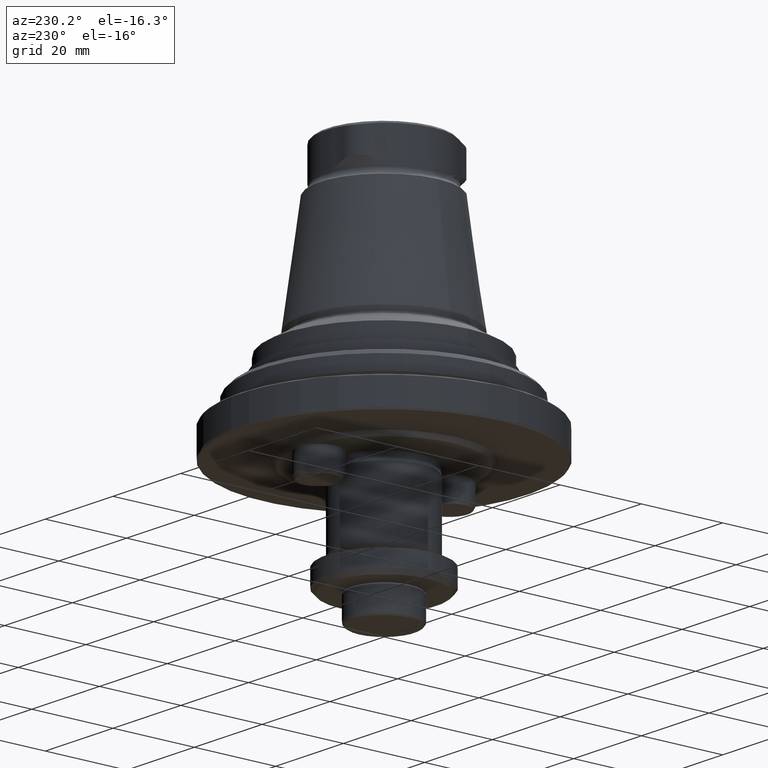
[diagram: clean part render]
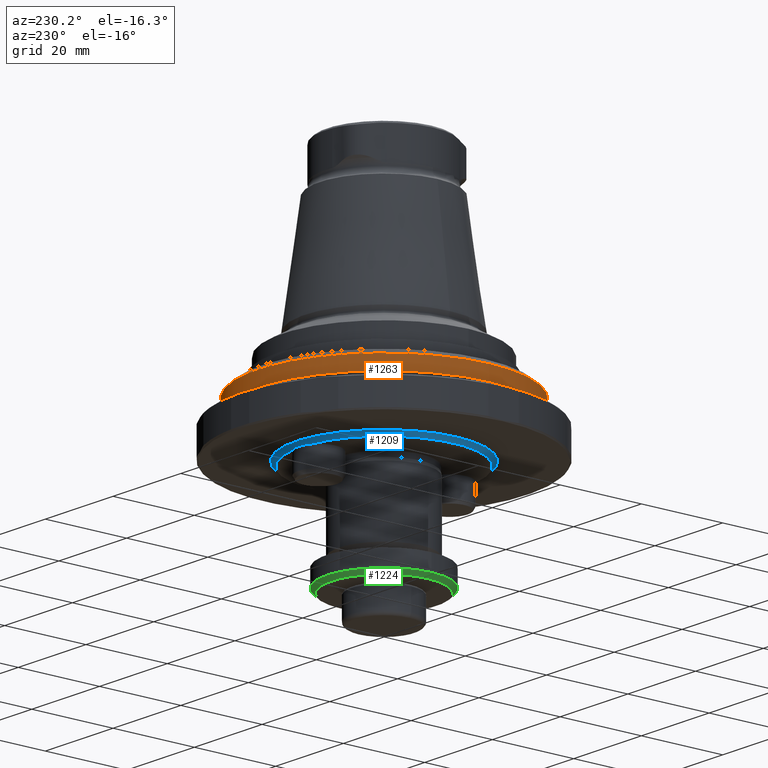
[diagram: same view with three faces highlighted in distinct colors, each labeled with its STEP entity id]
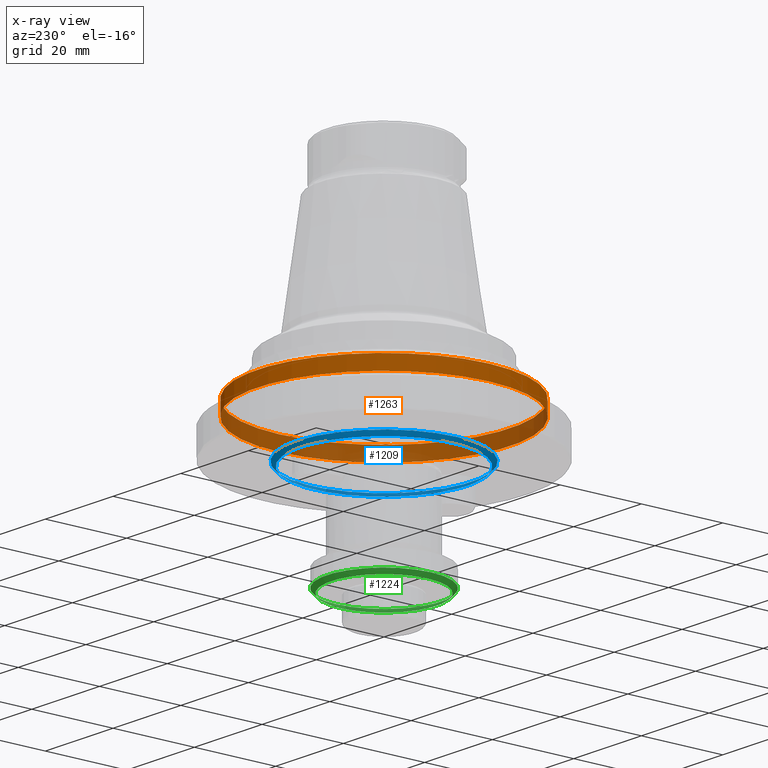
[diagram: x-ray of the same camera — body ghosted, the three highlighted faces saturated]
A machine part, auxiliary view with three faces highlighted in distinct colors.
The next image is the same camera in x-ray (body ghosted, the three faces saturated) — at least one of them is partly hidden behind the body in this view.
Their STEP definitions:

[orange] entity #1263 — the highlighted cylindrical surface (bore or boss wall) has radius 31 mm, axis along (-0, 0, -1).
#407=ORIENTED_EDGE('',*,*,#642,.F.);
#408=ORIENTED_EDGE('',*,*,#643,.T.);
#642=EDGE_CURVE('',#780,#780,#876,.T.);
#643=EDGE_CURVE('',#781,#781,#877,.T.);
#780=VERTEX_POINT('',#2215);
#781=VERTEX_POINT('',#2218);
#876=CIRCLE('',#1419,31.);
#877=CIRCLE('',#1421,31.);
#991=EDGE_LOOP('',(#407));
#992=EDGE_LOOP('',(#408));
#1124=FACE_BOUND('',#991,.T.);
#1125=FACE_BOUND('',#992,.T.);
#1194=CYLINDRICAL_SURFACE('',#1420,31.);
#1263=ADVANCED_FACE('',(#1124,#1125),#1194,.T.);
#1419=AXIS2_PLACEMENT_3D('',#2214,#1728,#1729);
#1420=AXIS2_PLACEMENT_3D('',#2216,#1730,#1731);
#1421=AXIS2_PLACEMENT_3D('',#2217,#1732,#1733);
#1728=DIRECTION('',(-5.55111512312578E-17,1.04225259501902E-17,-1.));
#1729=DIRECTION('',(-1.,0.,5.55111512312578E-17));
#1730=DIRECTION('',(-5.55111512312578E-17,1.04225259501902E-17,-1.));
#1731=DIRECTION('',(-1.,0.,5.55111512312578E-17));
#1732=DIRECTION('',(-5.55111512312578E-17,1.04225259501902E-17,-1.));
#1733=DIRECTION('',(-1.,0.,5.55111512312578E-17));
#2214=CARTESIAN_POINT('',(1.16066414018512E-14,4.89858719658938E-17,0.799999999999994));
#2215=CARTESIAN_POINT('',(-31.,4.89858719658938E-17,0.799999999999996));
#2216=CARTESIAN_POINT('',(1.15067213296349E-14,6.77464186762363E-17,-1.00000000000001));
#2217=CARTESIAN_POINT('',(1.18009304311606E-14,1.2507031140228E-17,4.29999999999999));
#2218=CARTESIAN_POINT('',(-31.,1.2507031140228E-17,4.3));

[blue] entity #1209 — the highlighted conical surface has half-angle 45 deg.
#146=CONICAL_SURFACE('',#1320,20.5,0.78539816339745);
#212=ORIENTED_EDGE('',*,*,#544,.F.);
#213=ORIENTED_EDGE('',*,*,#543,.F.);
#214=ORIENTED_EDGE('',*,*,#545,.F.);
#215=ORIENTED_EDGE('',*,*,#541,.F.);
#216=ORIENTED_EDGE('',*,*,#546,.F.);
#541=EDGE_CURVE('',#707,#709,#828,.T.);
#543=EDGE_CURVE('',#710,#708,#830,.T.);
#544=EDGE_CURVE('',#711,#711,#831,.F.);
#545=EDGE_CURVE('',#709,#710,#832,.T.);
#546=EDGE_CURVE('',#708,#707,#833,.T.);
#707=VERTEX_POINT('',#1883);
#708=VERTEX_POINT('',#1884);
#709=VERTEX_POINT('',#1886);
#710=VERTEX_POINT('',#1888);
#711=VERTEX_POINT('',#1892);
#828=CIRCLE('',#1317,20.5);
#830=CIRCLE('',#1319,20.5);
#831=CIRCLE('',#1321,21.5);
#832=CIRCLE('',#1322,20.5);
#833=CIRCLE('',#1323,20.5);
#912=EDGE_LOOP('',(#212));
#913=EDGE_LOOP('',(#213,#214,#215,#216));
#1045=FACE_BOUND('',#912,.T.);
#1046=FACE_BOUND('',#913,.T.);
#1209=ADVANCED_FACE('',(#1045,#1046),#146,.T.);
#1317=AXIS2_PLACEMENT_3D('',#1885,#1499,#1500);
#1319=AXIS2_PLACEMENT_3D('',#1889,#1503,#1504);
#1320=AXIS2_PLACEMENT_3D('',#1890,#1505,#1506);
#1321=AXIS2_PLACEMENT_3D('',#1891,#1507,#1508);
#1322=AXIS2_PLACEMENT_3D('',#1893,#1509,#1510);
#1323=AXIS2_PLACEMENT_3D('',#1894,#1511,#1512);
#1499=DIRECTION('',(-5.55111512312578E-17,0.,-1.));
#1500=DIRECTION('',(0.,1.,0.));
#1503=DIRECTION('',(-5.55111512312578E-17,0.,-1.));
#1504=DIRECTION('',(0.,1.,0.));
#1505=DIRECTION('',(5.55111512312578E-17,0.,1.));
#1506=DIRECTION('',(0.,-1.,0.));
#1507=DIRECTION('',(5.35909541760885E-17,-6.68035657486175E-33,-1.));
#1508=DIRECTION('',(-1.,0.,-5.35909541760885E-17));
#1509=DIRECTION('',(-5.55111512312578E-17,0.,-1.));
#1510=DIRECTION('',(0.,1.,0.));
#1511=DIRECTION('',(-5.55111512312578E-17,0.,-1.));
#1512=DIRECTION('',(0.,1.,0.));
#1883=CARTESIAN_POINT('',(-2.57144602259714,-20.3380841121495,-9.00000000000001));
#1884=CARTESIAN_POINT('',(2.57144602259715,-20.3380841121495,-9.00000000000001));
#1885=CARTESIAN_POINT('',(5.66219908181803E-15,0.,-9.00000000000001));
#1886=CARTESIAN_POINT('',(-2.57144602259719,20.3380841121495,-9.00000000000001));
#1888=CARTESIAN_POINT('',(2.5714460225972,20.3380841121495,-9.00000000000001));
#1889=CARTESIAN_POINT('',(5.66219908181803E-15,0.,-9.00000000000001));
#1890=CARTESIAN_POINT('',(5.66219908181803E-15,0.,-9.00000000000001));
#1891=CARTESIAN_POINT('',(5.71771023304929E-15,0.,-8.));
#1892=CARTESIAN_POINT('',(-21.5,0.,-8.));
#1893=CARTESIAN_POINT('',(5.66219908181803E-15,0.,-9.00000000000001));
#1894=CARTESIAN_POINT('',(5.66219908181803E-15,0.,-9.00000000000001));

[green] entity #1224 — the highlighted conical surface has half-angle 45 deg.
#149=CONICAL_SURFACE('',#1352,14.,0.785398163397449);
#258=ORIENTED_EDGE('',*,*,#571,.F.);
#259=ORIENTED_EDGE('',*,*,#572,.T.);
#571=EDGE_CURVE('',#731,#731,#847,.T.);
#572=EDGE_CURVE('',#732,#732,#848,.T.);
#731=VERTEX_POINT('',#1969);
#732=VERTEX_POINT('',#1972);
#847=CIRCLE('',#1351,13.);
#848=CIRCLE('',#1353,14.);
#937=EDGE_LOOP('',(#258));
#938=EDGE_LOOP('',(#259));
#1070=FACE_BOUND('',#937,.T.);
#1071=FACE_BOUND('',#938,.T.);
#1224=ADVANCED_FACE('',(#1070,#1071),#149,.T.);
#1351=AXIS2_PLACEMENT_3D('',#1968,#1574,#1575);
#1352=AXIS2_PLACEMENT_3D('',#1970,#1576,#1577);
#1353=AXIS2_PLACEMENT_3D('',#1971,#1578,#1579);
#1574=DIRECTION('',(-5.55111512312578E-17,1.05145690546658E-32,-1.));
#1575=DIRECTION('',(-1.,1.44497044538006E-16,5.55111512312578E-17));
#1576=DIRECTION('',(5.55111512312578E-17,-1.05145690546658E-32,1.));
#1577=DIRECTION('',(1.,-1.44497044538006E-16,-5.55111512312578E-17));
#1578=DIRECTION('',(-5.55111512312578E-17,1.05145690546658E-32,-1.));
#1579=DIRECTION('',(-1.,1.44497044538006E-16,5.55111512312578E-17));
#1968=CARTESIAN_POINT('',(4.27442030292226E-15,-8.55713545927034E-8,-34.));
#1969=CARTESIAN_POINT('',(-13.,-8.55713527142418E-8,-34.));
#1970=CARTESIAN_POINT('',(4.32993145415352E-15,-8.55713545927034E-8,-33.));
#1971=CARTESIAN_POINT('',(4.32993145415352E-15,-8.55713545927034E-8,-33.));
#1972=CARTESIAN_POINT('',(-14.,-8.55713525697448E-8,-33.));